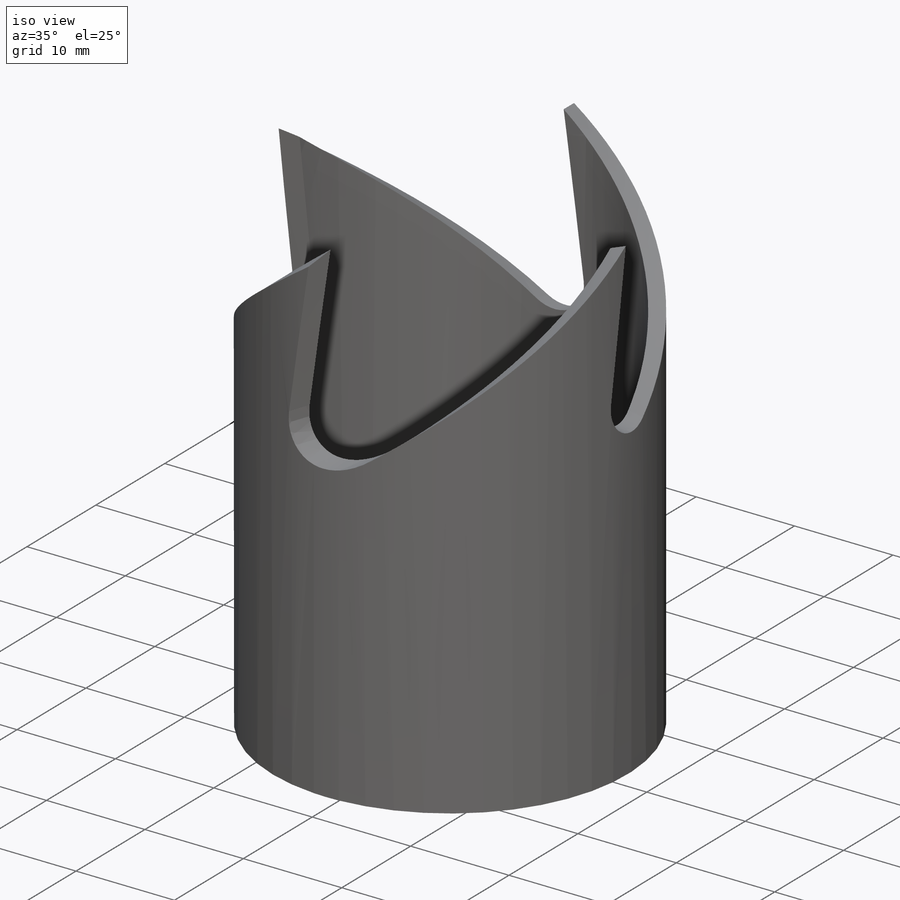
[diagram: iso view]
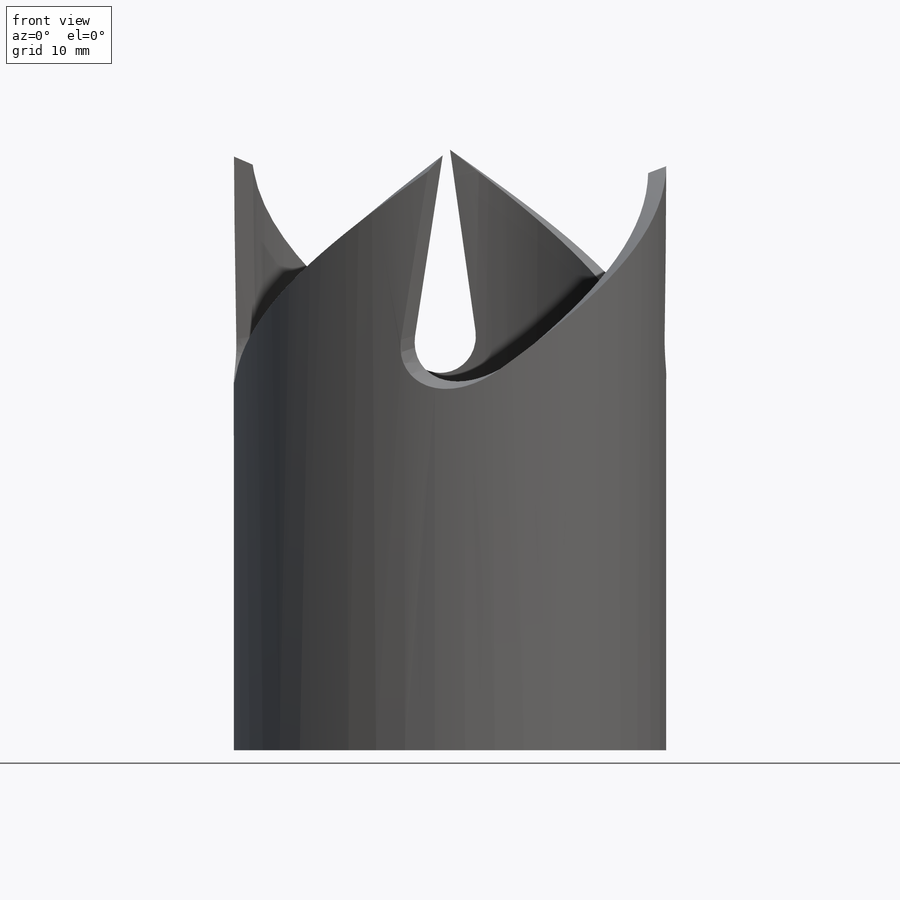
[diagram: front view]
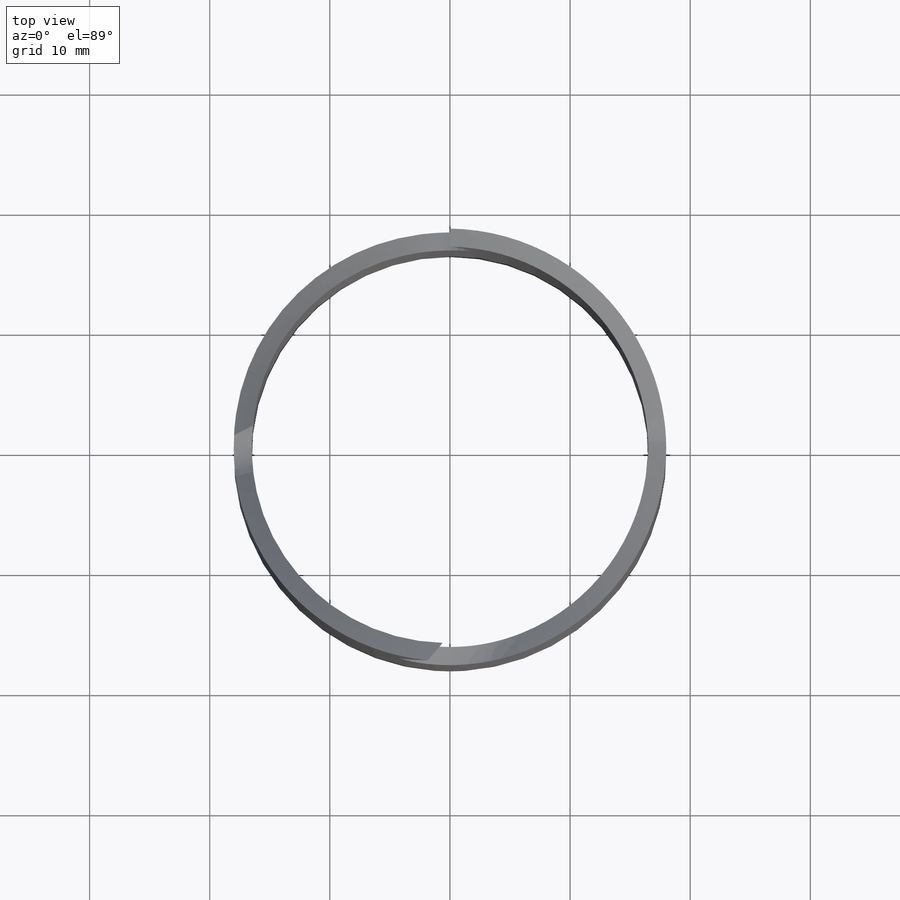
[diagram: top view]
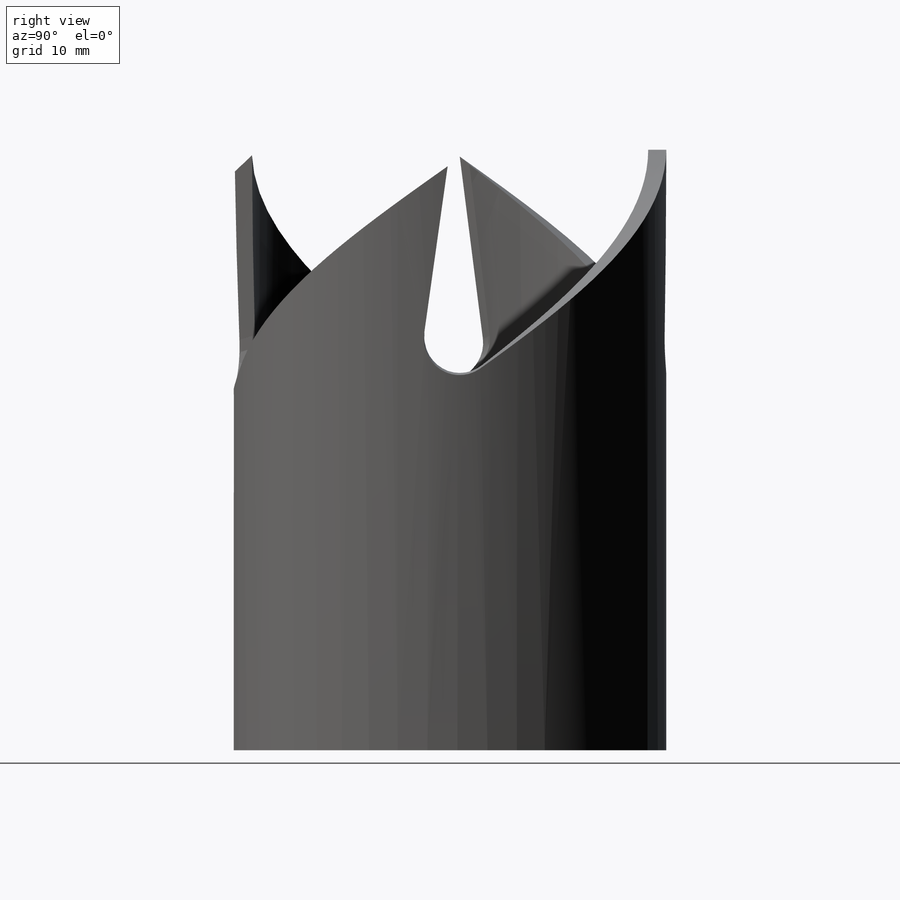
[diagram: right view]
SOLIDWORKS PART (.sldprt)
format: sldprt  version: not decoded by parser v0  size: 369,152 bytes
history: native  units: mm
features: sketch x9, cut_extrude x4, fillet x4, chamfer x4, plane x3, sweep x2, material x1, extrude x1, helix x1 (+8 scaffold rows collapsed)
feature tree (37):
  scaffold x8  (default folders/planes/origin — collapsed)
  material  "Material <nicht festgelegt>"
  plane  "Ebene vorne"
  plane  "Ebene oben"
  plane  "Ebene rechts"
  sketch  "Skizze1"  dims[D1=36.0mm D2=33.0mm]
  extrude  "Aufsatz-Linear austragen1"  Depth=50mm
  sketch  "Skizze2"  dims[D1=36.0mm]
  helix  "Spirale/Helix1"  Pitch=20mm
  sketch  "Skizze3"  dims[D1=25.0mm D2=25.0mm D3=1.5mm D4=1.5mm]
  sweep  "Schnitt-Austragung1"
  sketch  "Skizze4"  dims[D1=25.0mm D2=25.0mm D3=1.5mm D4=1.5mm]
  sketch  "Skizze5"  dims[D1=36.0mm Spirale/Helix2=0.0 D3=20.0mm D4=80.0mm D5=250.0mm D7=0.0deg]
  sweep  "Schnitt-Austragung2"
  sketch  "Skizze8"  dims[c1.D1=~17.733532mm c2.D1=8.0deg c2.D2=~2.498832mm c3.D2=124.0deg]
  cut_extrude  "Schnitt-Linear austragen4"  [1 undecoded]
  fillet  "Verrundung2"  Radius=3mm
  sketch  "Skizze9"  dims[c1.D1=20.0mm c2.D1=8.0deg c2.D2=~2.542922mm c3.D2=124.0deg c3.D3=20.0mm]
  cut_extrude  "Schnitt-Linear austragen5"  Depth=29.9mm
  sketch  "Skizze10"  dims[c1.D1=20.0mm c2.D1=8.0deg c2.D2=~2.592359mm c3.D2=124.0deg]
  cut_extrude  "Schnitt-Linear austragen6"  Depth=29.9mm
  fillet  "Verrundung4"  Radius=3mm
  sketch  "Skizze11"  dims[c1.D1=20.0mm c2.D1=8.0deg c2.D2=~2.530457mm c3.D2=124.0deg]
  cut_extrude  "Schnitt-Linear austragen7"  Depth=29.9mm
  chamfer  "Fase5"  Distance=1.5mm Angle=15deg
  chamfer  "Fase6"  Distance=1.5mm Angle=60deg
  chamfer  "Fase10"  Distance=1.5mm Angle=60deg
  chamfer  "Fase11"  Distance=1.5mm Angle=75deg
  fillet  "Verrundung10"  Radius=4mm
  fillet  "Verrundung11"  Radius=3mm
decode coverage: 22 of 25 modeling features carry decoded parameters
note: ~ marks probable driven/reference dimensions
note: 1 parameter value undecoded
note: suppression state not decoded; provenance and decode notes live in map.json
